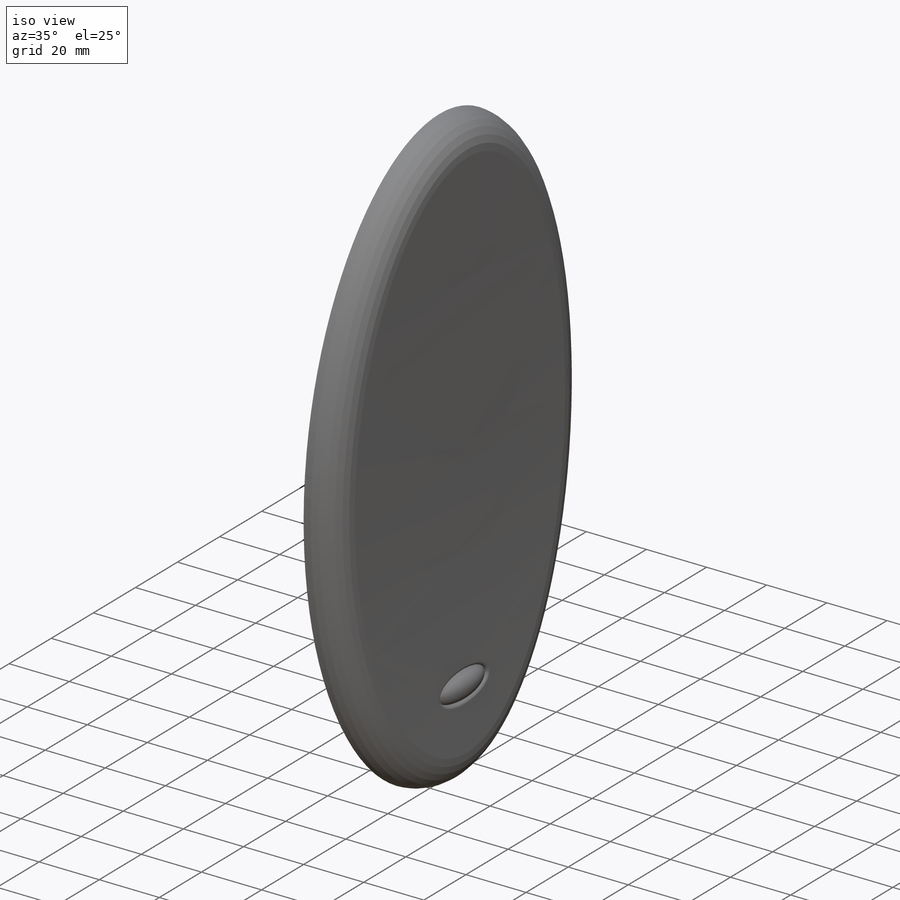
[diagram: iso view]
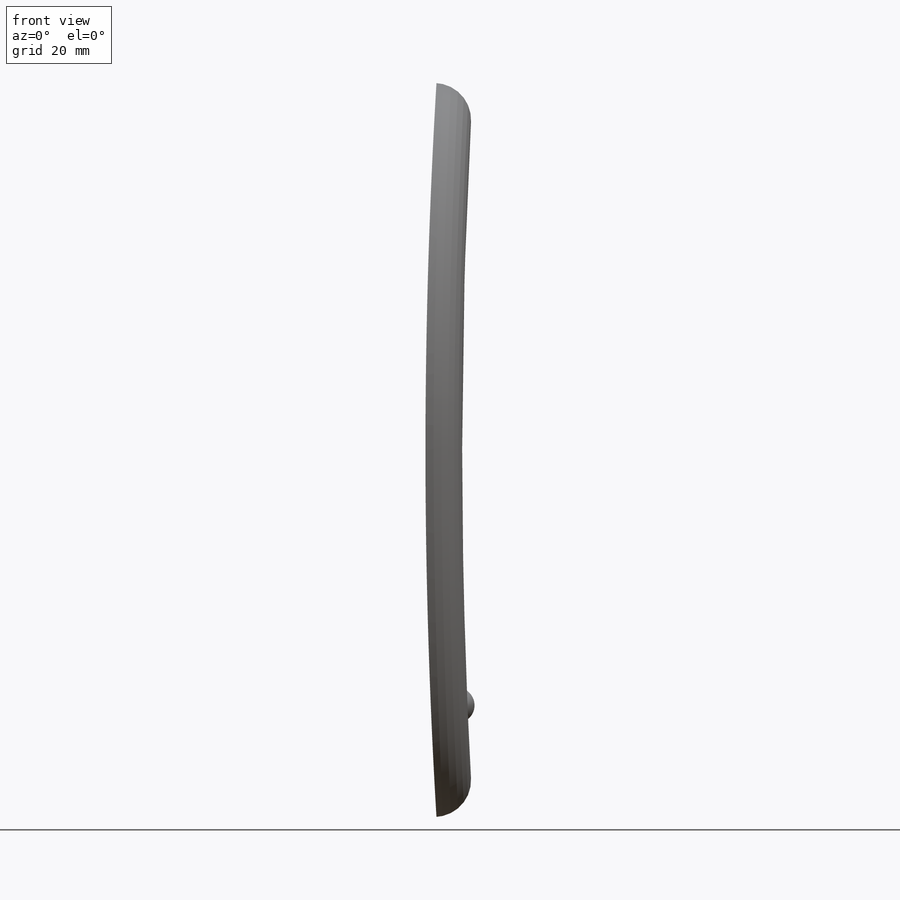
[diagram: front view]
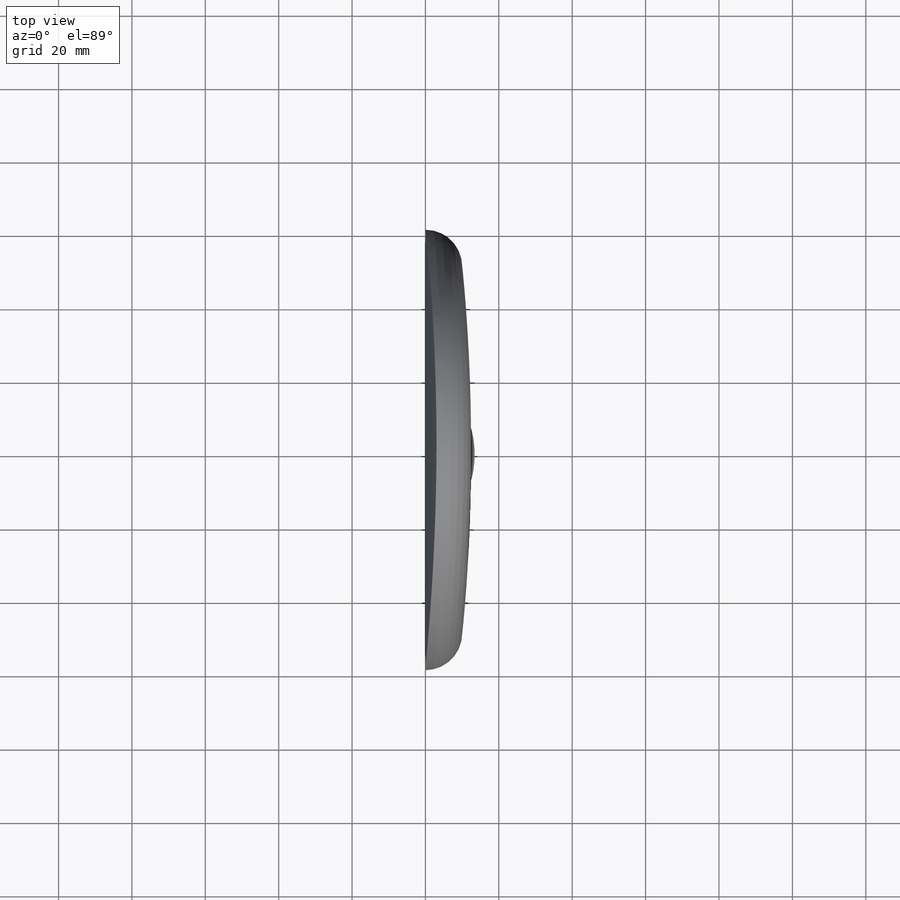
[diagram: top view]
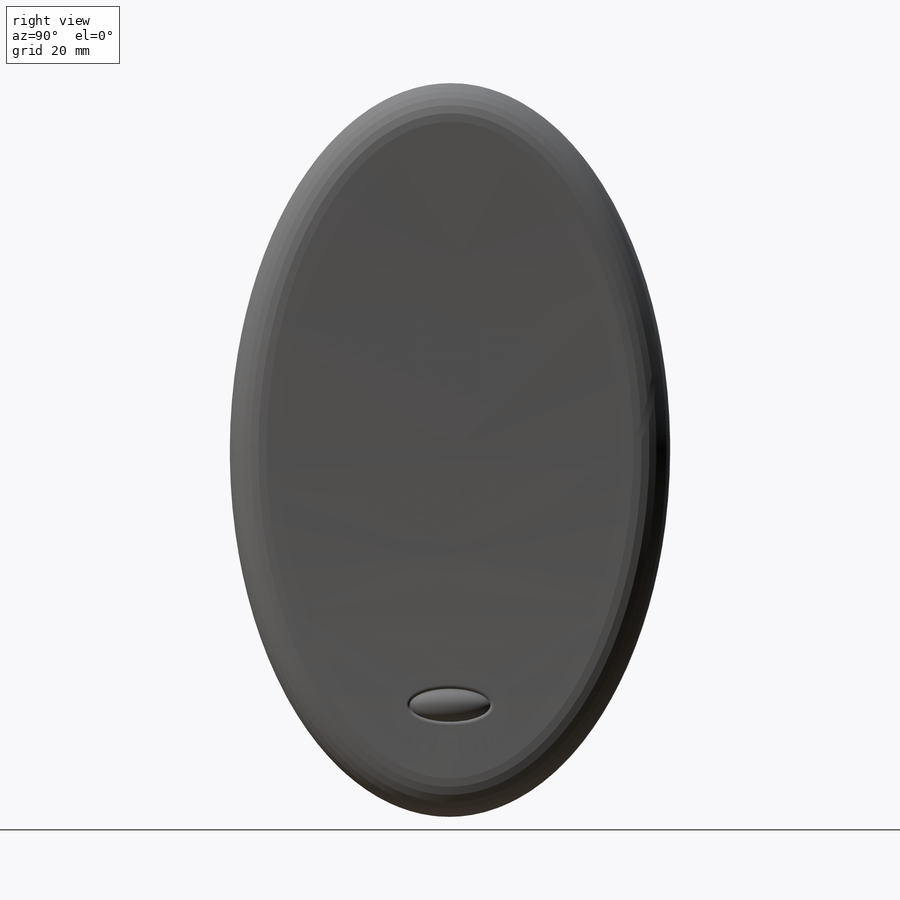
[diagram: right view]
SOLIDWORKS PART (.sldprt)
format: sldprt  version: not decoded by parser v0  size: 335,872 bytes
history: native  units: mm
features: sketch x4, extrude x2, cut_extrude x2, fillet x2, material x1, plane x1, dome x1 (+12 scaffold rows collapsed)
feature tree (25):
  scaffold x12  (default folders/planes/origin — collapsed)
  material  "Материал <не указан>"
  sketch  "Sketch1"  dims[D1=100.0mm D2=60.0mm D3=50.0mm D4=45.0mm]
  extrude  "Boss-Extrude1"  Depth=13mm
  sketch  "Sketch2"  dims[D1=3.0mm D2=10.0mm]
  cut_extrude  "Cut-Extrude1"  [1 undecoded]
  fillet  "Fillet1"  Radius=10mm
  plane  "Plane1"  Offset=13mm
  sketch  "Sketch3"  dims[D1=22.0mm D2=9.0mm]
  cut_extrude  "Cut-Extrude5"  Depth=2.72mm
  fillet  "Fillet2"  Radius=1mm
  sketch  "Эскиз1"  dims[D1=0.0mm]
  extrude  "Бобышка-Вытянуть1"  Depth=0.1mm
  dome  "Купол1"
decode coverage: 9 of 11 modeling features carry decoded parameters
note: 1 parameter value undecoded
note: suppression state not decoded; provenance and decode notes live in map.json
